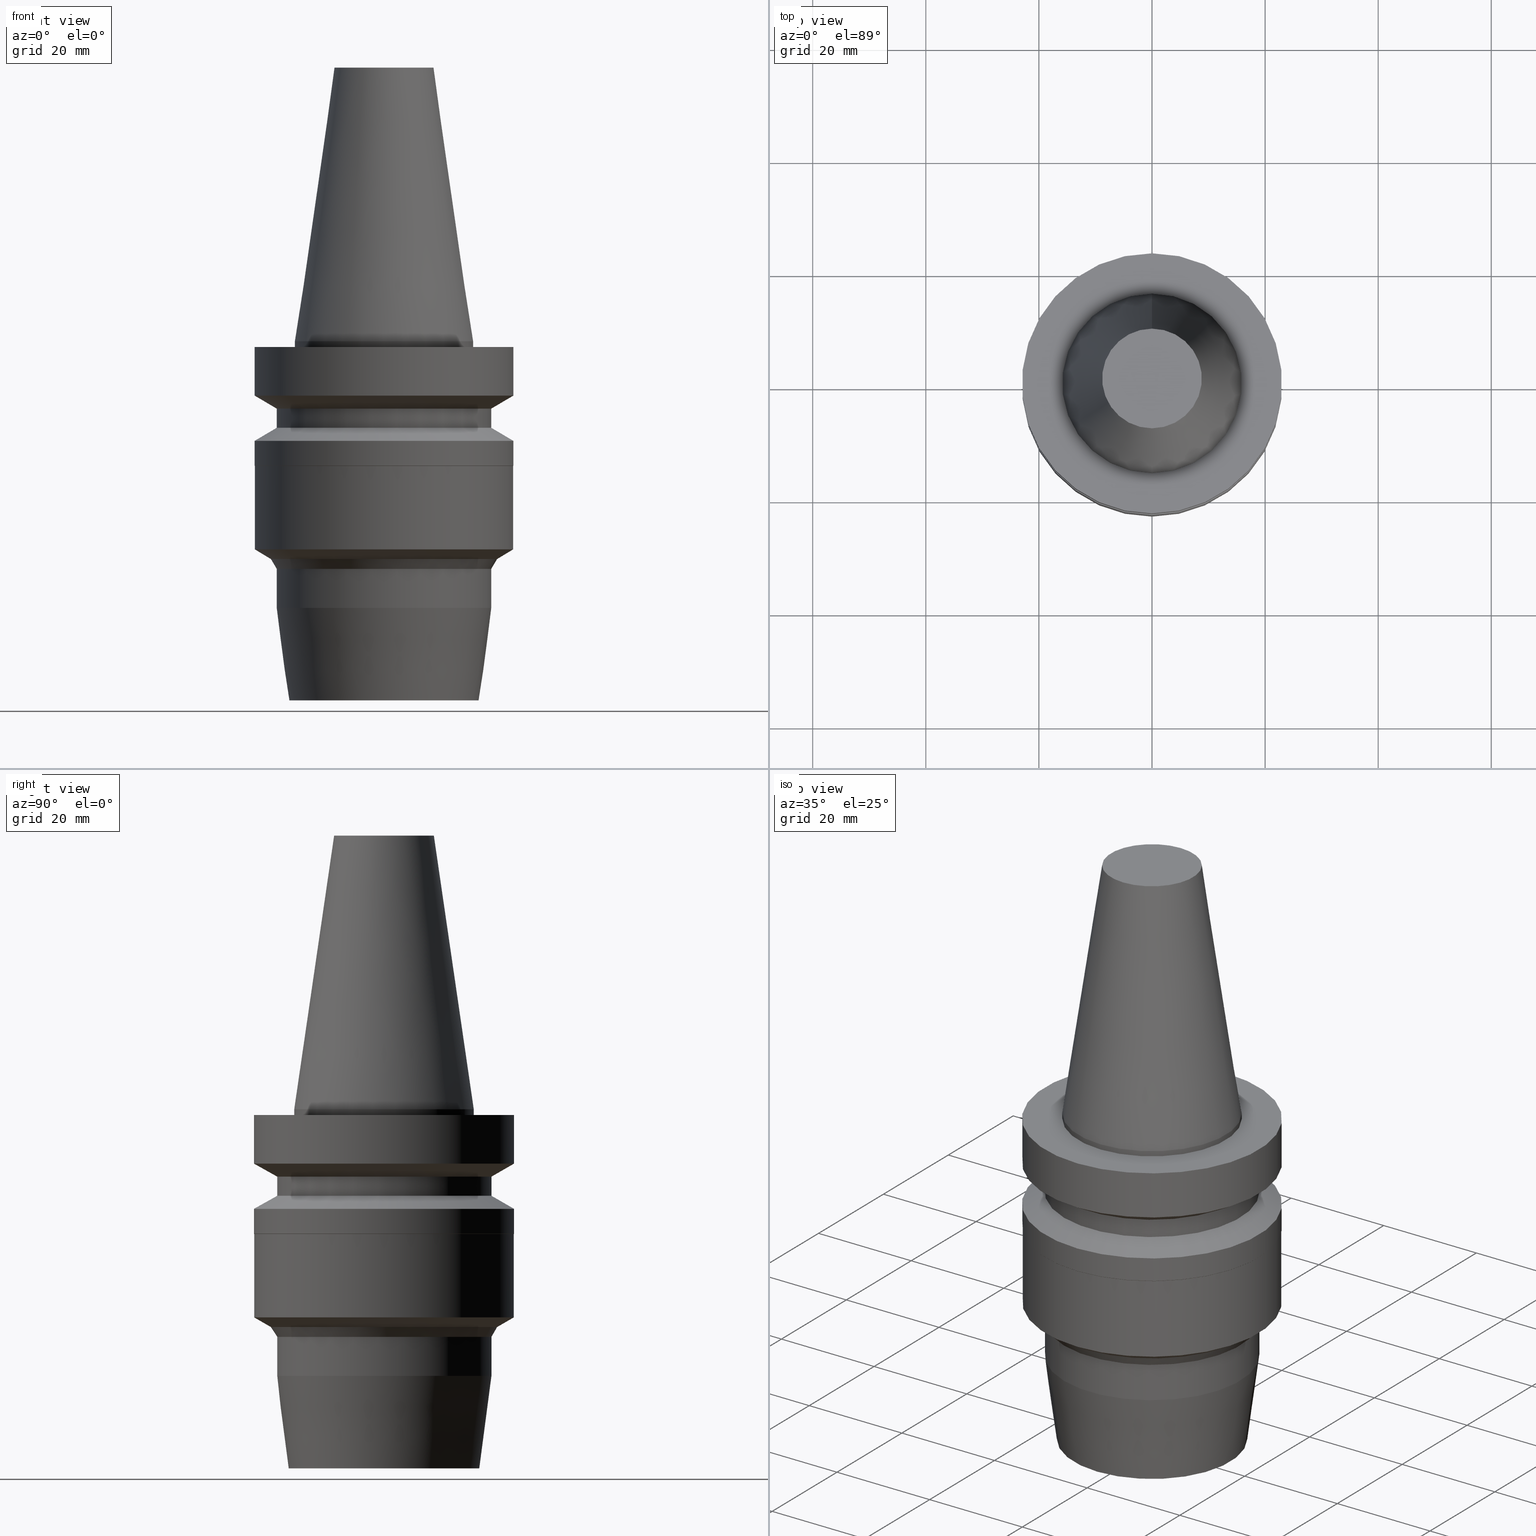
[diagram: canonical four-view strip — front | top / right | iso, engineering-drawing reading convention]
A machine part, canonical four-view strip (front | top / right | iso — engineering-drawing reading convention). The complete STEP part file that produces these views, byte-faithful:
ISO-10303-21;
HEADER;
FILE_DESCRIPTION((''),'1');
FILE_NAME('V:/90_\X2\53D65F9730C730FC30BF\X0\/00_\X2\6DE18DEF30C730FC30BF\X0\/ALL/BBT-BKUS\X2\FF76FF80FF9BFF78FF9E752852A05DE556F3\X0\201801/BBT30-HDC/BBT30-HDC.625-2.5.stp','2018-02-07T04:35:23',(''),(''),'Spatial Interop R21 SP3','Kubotek KeyCreator 2011 V10.0.2 (22737)',' ');
FILE_SCHEMA(('automotive_design'));
ENDSEC;
DATA;
#1=MECHANICAL_DESIGN_GEOMETRIC_PRESENTATION_REPRESENTATION(' ',(#10,#11,#12,#13,#14,#15,#16,#17,#18,#19,#20,#21,#22,#23,#24,#25,#26,#27,#28,#29,#30,#31,#32,#33,#34,#35,#36,#37,#38,#39,#40,#41),#6);
#2=PRODUCT_DEFINITION_CONTEXT('',#42,'design');
#3=APPLICATION_PROTOCOL_DEFINITION('INTERNATIONAL STANDARD','automotive_design',1994,#42);
#4=PRODUCT_CATEGORY_RELATIONSHIP('NONE','NONE',#43,#44);
#5=SHAPE_DEFINITION_REPRESENTATION(#45,#46);
#6= (GEOMETRIC_REPRESENTATION_CONTEXT(3)GLOBAL_UNCERTAINTY_ASSIGNED_CONTEXT((#49))GLOBAL_UNIT_ASSIGNED_CONTEXT((#51,#52,#53))REPRESENTATION_CONTEXT('NONE','WORKSPACE'));
#10=STYLED_ITEM('',(#55),#56);
#11=STYLED_ITEM('',(#57,#58),#59);
#12=STYLED_ITEM('',(#60,#61),#62);
#13=STYLED_ITEM('',(#63),#64);
#14=STYLED_ITEM('',(#65,#66),#67);
#15=STYLED_ITEM('',(#68),#69);
#16=STYLED_ITEM('',(#70),#71);
#17=STYLED_ITEM('',(#72,#73),#74);
#18=STYLED_ITEM('',(#75,#76),#77);
#19=STYLED_ITEM('',(#78,#79),#80);
#20=STYLED_ITEM('',(#81,#82),#83);
#21=STYLED_ITEM('',(#84,#85),#86);
#22=STYLED_ITEM('',(#87),#88);
#23=STYLED_ITEM('',(#89),#90);
#24=STYLED_ITEM('',(#91),#92);
#25=STYLED_ITEM('',(#93),#94);
#26=STYLED_ITEM('',(#95,#96),#97);
#27=STYLED_ITEM('',(#98,#99),#100);
#28=STYLED_ITEM('',(#101,#102),#103);
#29=STYLED_ITEM('',(#104),#105);
#30=STYLED_ITEM('',(#106),#107);
#31=STYLED_ITEM('',(#108),#109);
#32=STYLED_ITEM('',(#110),#111);
#33=STYLED_ITEM('',(#112,#113),#114);
#34=STYLED_ITEM('',(#115,#116),#117);
#35=STYLED_ITEM('',(#118,#119),#120);
#36=STYLED_ITEM('',(#121,#122),#123);
#37=STYLED_ITEM('',(#124),#125);
#38=STYLED_ITEM('',(#126),#127);
#39=STYLED_ITEM('',(#128),#129);
#40=STYLED_ITEM('',(#130,#131),#132);
#41=STYLED_ITEM('',(#133,#134),#135);
#42=APPLICATION_CONTEXT(' ');
#43=PRODUCT_CATEGORY('part','NONE');
#44=PRODUCT_RELATED_PRODUCT_CATEGORY('detail',' ',(#136));
#45=PRODUCT_DEFINITION_SHAPE('NONE','NONE',#137);
#46=ADVANCED_BREP_SHAPE_REPRESENTATION('Unnamed[1]',(#86,#138),#6);
#49=UNCERTAINTY_MEASURE_WITH_UNIT(LENGTH_MEASURE(1.0E-006),#51,'','');
#51= (CONVERSION_BASED_UNIT('MILLIMETRE',#141)LENGTH_UNIT()NAMED_UNIT(#144));
#52= (NAMED_UNIT(#146)PLANE_ANGLE_UNIT()SI_UNIT($,.RADIAN.));
#53= (NAMED_UNIT(#146)SOLID_ANGLE_UNIT()SI_UNIT($,.STERADIAN.));
#55=PRESENTATION_STYLE_ASSIGNMENT((#152));
#56=EDGE_CURVE('Unnamed[1]',#153,#153,#154,.T.);
#57=PRESENTATION_STYLE_ASSIGNMENT((#155));
#58=PRESENTATION_STYLE_ASSIGNMENT((#156));
#59=ADVANCED_FACE('Unnamed[1]',(#157,#158),#159,.T.);
#60=PRESENTATION_STYLE_ASSIGNMENT((#160));
#61=PRESENTATION_STYLE_ASSIGNMENT((#161));
#62=ADVANCED_FACE('Unnamed[1]',(#162,#163),#164,.T.);
#63=PRESENTATION_STYLE_ASSIGNMENT((#165));
#64=EDGE_CURVE('Unnamed[1]',#166,#166,#167,.T.);
#65=PRESENTATION_STYLE_ASSIGNMENT((#168));
#66=PRESENTATION_STYLE_ASSIGNMENT((#169));
#67=ADVANCED_FACE('Unnamed[1]',(#170,#171),#172,.T.);
#68=PRESENTATION_STYLE_ASSIGNMENT((#173));
#69=EDGE_CURVE('Unnamed[1]',#174,#174,#175,.T.);
#70=PRESENTATION_STYLE_ASSIGNMENT((#176));
#71=EDGE_CURVE('Unnamed[1]',#177,#177,#178,.T.);
#72=PRESENTATION_STYLE_ASSIGNMENT((#179));
#73=PRESENTATION_STYLE_ASSIGNMENT((#180));
#74=ADVANCED_FACE('Unnamed[1]',(#181,#182),#183,.T.);
#75=PRESENTATION_STYLE_ASSIGNMENT((#184));
#76=PRESENTATION_STYLE_ASSIGNMENT((#185));
#77=ADVANCED_FACE('Unnamed[1]',(#186,#187),#188,.T.);
#78=PRESENTATION_STYLE_ASSIGNMENT((#189));
#79=PRESENTATION_STYLE_ASSIGNMENT((#190));
#80=ADVANCED_FACE('Unnamed[1]',(#191,#192),#193,.T.);
#81=PRESENTATION_STYLE_ASSIGNMENT((#194));
#82=PRESENTATION_STYLE_ASSIGNMENT((#195));
#83=ADVANCED_FACE('Unnamed[1]',(#196,#197),#198,.T.);
#84=PRESENTATION_STYLE_ASSIGNMENT((#199));
#85=PRESENTATION_STYLE_ASSIGNMENT((#200));
#86=MANIFOLD_SOLID_BREP('Unnamed[1]',#201);
#87=PRESENTATION_STYLE_ASSIGNMENT((#202));
#88=EDGE_CURVE('Unnamed[1]',#203,#203,#204,.T.);
#89=PRESENTATION_STYLE_ASSIGNMENT((#205));
#90=EDGE_CURVE('Unnamed[1]',#206,#206,#207,.T.);
#91=PRESENTATION_STYLE_ASSIGNMENT((#208));
#92=EDGE_CURVE('Unnamed[1]',#209,#209,#210,.T.);
#93=PRESENTATION_STYLE_ASSIGNMENT((#211));
#94=EDGE_CURVE('Unnamed[1]',#212,#212,#213,.T.);
#95=PRESENTATION_STYLE_ASSIGNMENT((#214));
#96=PRESENTATION_STYLE_ASSIGNMENT((#215));
#97=ADVANCED_FACE('Unnamed[1]',(#216,#217),#218,.T.);
#98=PRESENTATION_STYLE_ASSIGNMENT((#219));
#99=PRESENTATION_STYLE_ASSIGNMENT((#220));
#100=ADVANCED_FACE('Unnamed[1]',(#221,#222),#223,.T.);
#101=PRESENTATION_STYLE_ASSIGNMENT((#224));
#102=PRESENTATION_STYLE_ASSIGNMENT((#225));
#103=ADVANCED_FACE('Unnamed[1]',(#226,#227),#228,.T.);
#104=PRESENTATION_STYLE_ASSIGNMENT((#229));
#105=EDGE_CURVE('Unnamed[1]',#230,#230,#231,.T.);
#106=PRESENTATION_STYLE_ASSIGNMENT((#232));
#107=EDGE_CURVE('Unnamed[1]',#233,#233,#234,.T.);
#108=PRESENTATION_STYLE_ASSIGNMENT((#235));
#109=EDGE_CURVE('Unnamed[1]',#236,#236,#237,.T.);
#110=PRESENTATION_STYLE_ASSIGNMENT((#238));
#111=EDGE_CURVE('Unnamed[1]',#239,#239,#240,.T.);
#112=PRESENTATION_STYLE_ASSIGNMENT((#241));
#113=PRESENTATION_STYLE_ASSIGNMENT((#242));
#114=ADVANCED_FACE('Unnamed[1]',(#243,#244),#245,.T.);
#115=PRESENTATION_STYLE_ASSIGNMENT((#246));
#116=PRESENTATION_STYLE_ASSIGNMENT((#247));
#117=ADVANCED_FACE('Unnamed[1]',(#248),#249,.T.);
#118=PRESENTATION_STYLE_ASSIGNMENT((#250));
#119=PRESENTATION_STYLE_ASSIGNMENT((#251));
#120=ADVANCED_FACE('Unnamed[1]',(#252,#253),#254,.T.);
#121=PRESENTATION_STYLE_ASSIGNMENT((#255));
#122=PRESENTATION_STYLE_ASSIGNMENT((#256));
#123=ADVANCED_FACE('Unnamed[1]',(#257),#258,.T.);
#124=PRESENTATION_STYLE_ASSIGNMENT((#259));
#125=EDGE_CURVE('Unnamed[1]',#260,#260,#261,.T.);
#126=PRESENTATION_STYLE_ASSIGNMENT((#262));
#127=EDGE_CURVE('Unnamed[1]',#263,#263,#264,.T.);
#128=PRESENTATION_STYLE_ASSIGNMENT((#265));
#129=EDGE_CURVE('Unnamed[1]',#266,#266,#267,.T.);
#130=PRESENTATION_STYLE_ASSIGNMENT((#268));
#131=PRESENTATION_STYLE_ASSIGNMENT((#269));
#132=ADVANCED_FACE('Unnamed[1]',(#270,#271),#272,.T.);
#133=PRESENTATION_STYLE_ASSIGNMENT((#273));
#134=PRESENTATION_STYLE_ASSIGNMENT((#274));
#135=ADVANCED_FACE('Unnamed[1]',(#275,#276),#277,.T.);
#136=PRODUCT('Unnamed[1]','Unnamed[1]','PART-Unnamed[1]-DESC',(#278));
#137=PRODUCT_DEFINITION('NONE','NONE',#279,#2);
#138=AXIS2_PLACEMENT_3D('',#280,#281,#282);
#141=LENGTH_MEASURE_WITH_UNIT(LENGTH_MEASURE(1.0),#283);
#144=DIMENSIONAL_EXPONENTS(1.0,0.0,0.0,0.0,0.0,0.0,0.0);
#146=DIMENSIONAL_EXPONENTS(0.0,0.0,0.0,0.0,0.0,0.0,0.0);
#152=CURVE_STYLE('',#284,POSITIVE_LENGTH_MEASURE(1000.0),#285);
#153=VERTEX_POINT('',#286);
#154=CIRCLE('',#287,8.81650000198669);
#155=SURFACE_STYLE_USAGE(.BOTH.,#288);
#156=CURVE_STYLE('',#289,POSITIVE_LENGTH_MEASURE(1000.0),#290);
#157=FACE_BOUND('',#291,.T.);
#158=FACE_BOUND('',#292,.T.);
#159=CYLINDRICAL_SURFACE('',#293,19.0);
#160=SURFACE_STYLE_USAGE(.BOTH.,#294);
#161=CURVE_STYLE('',#295,POSITIVE_LENGTH_MEASURE(1000.0),#296);
#162=FACE_BOUND('',#297,.T.);
#163=FACE_BOUND('',#298,.T.);
#164=CYLINDRICAL_SURFACE('',#299,22.9500000000001);
#165=CURVE_STYLE('',#300,POSITIVE_LENGTH_MEASURE(1000.0),#301);
#166=VERTEX_POINT('',#302);
#167=CIRCLE('',#303,19.0);
#168=SURFACE_STYLE_USAGE(.BOTH.,#304);
#169=CURVE_STYLE('',#305,POSITIVE_LENGTH_MEASURE(1000.0),#306);
#170=FACE_BOUND('',#307,.T.);
#171=FACE_BOUND('',#308,.T.);
#172=CYLINDRICAL_SURFACE('',#309,23.0);
#173=CURVE_STYLE('',#310,POSITIVE_LENGTH_MEASURE(1000.0),#311);
#174=VERTEX_POINT('',#312);
#175=CIRCLE('',#313,22.9500000000004);
#176=CURVE_STYLE('',#314,POSITIVE_LENGTH_MEASURE(1000.0),#315);
#177=VERTEX_POINT('',#316);
#178=CIRCLE('',#317,19.0000000000028);
#179=SURFACE_STYLE_USAGE(.BOTH.,#318);
#180=CURVE_STYLE('',#319,POSITIVE_LENGTH_MEASURE(1000.0),#320);
#181=FACE_BOUND('',#321,.T.);
#182=FACE_BOUND('',#322,.T.);
#183=CYLINDRICAL_SURFACE('',#323,15.875);
#184=SURFACE_STYLE_USAGE(.BOTH.,#324);
#185=CURVE_STYLE('',#325,POSITIVE_LENGTH_MEASURE(1000.0),#326);
#186=FACE_OUTER_BOUND('',#327,.T.);
#187=FACE_BOUND('',#328,.T.);
#188=PLANE('',#329);
#189=SURFACE_STYLE_USAGE(.BOTH.,#330);
#190=CURVE_STYLE('',#331,POSITIVE_LENGTH_MEASURE(1000.0),#332);
#191=FACE_BOUND('',#333,.T.);
#192=FACE_BOUND('',#334,.T.);
#193=CONICAL_SURFACE('',#335,22.9749999999999,0.7853981633972);
#194=SURFACE_STYLE_USAGE(.BOTH.,#336);
#195=CURVE_STYLE('',#337,POSITIVE_LENGTH_MEASURE(1000.0),#338);
#196=FACE_BOUND('',#339,.T.);
#197=FACE_BOUND('',#340,.T.);
#198=CYLINDRICAL_SURFACE('',#341,23.0);
#199=SURFACE_STYLE_USAGE(.BOTH.,#342);
#200=CURVE_STYLE('',#343,POSITIVE_LENGTH_MEASURE(1000.0),#344);
#201=CLOSED_SHELL('',(#123,#103,#74,#77,#83,#114,#59,#132,#67,#80,#62,#97,#135,#100,#120,#117));
#202=CURVE_STYLE('',#345,POSITIVE_LENGTH_MEASURE(1000.0),#346);
#203=VERTEX_POINT('',#347);
#204=CIRCLE('',#348,23.0);
#205=CURVE_STYLE('',#349,POSITIVE_LENGTH_MEASURE(1000.0),#350);
#206=VERTEX_POINT('',#351);
#207=CIRCLE('',#352,19.0000000000043);
#208=CURVE_STYLE('',#353,POSITIVE_LENGTH_MEASURE(1000.0),#354);
#209=VERTEX_POINT('',#355);
#210=CIRCLE('',#356,15.875);
#211=CURVE_STYLE('',#357,POSITIVE_LENGTH_MEASURE(1000.0),#358);
#212=VERTEX_POINT('',#359);
#213=CIRCLE('',#360,16.8455306051991);
#214=SURFACE_STYLE_USAGE(.BOTH.,#361);
#215=CURVE_STYLE('',#362,POSITIVE_LENGTH_MEASURE(1000.0),#363);
#216=FACE_BOUND('',#364,.T.);
#217=FACE_BOUND('',#365,.T.);
#218=CONICAL_SURFACE('',#366,21.4749999999991,1.04719755119646);
#219=SURFACE_STYLE_USAGE(.BOTH.,#367);
#220=CURVE_STYLE('',#368,POSITIVE_LENGTH_MEASURE(1000.0),#369);
#221=FACE_BOUND('',#370,.T.);
#222=FACE_BOUND('',#371,.T.);
#223=CYLINDRICAL_SURFACE('',#372,19.0000000000035);
#224=SURFACE_STYLE_USAGE(.BOTH.,#373);
#225=CURVE_STYLE('',#374,POSITIVE_LENGTH_MEASURE(1000.0),#375);
#226=FACE_BOUND('',#376,.T.);
#227=FACE_BOUND('',#377,.T.);
#228=CONICAL_SURFACE('',#378,12.3457500009933,0.144815870013618);
#229=CURVE_STYLE('',#379,POSITIVE_LENGTH_MEASURE(1000.0),#380);
#230=VERTEX_POINT('',#381);
#231=CIRCLE('',#382,23.0);
#232=CURVE_STYLE('',#383,POSITIVE_LENGTH_MEASURE(1000.0),#384);
#233=VERTEX_POINT('',#385);
#234=CIRCLE('',#386,23.0);
#235=CURVE_STYLE('',#387,POSITIVE_LENGTH_MEASURE(1000.0),#388);
#236=VERTEX_POINT('',#389);
#237=CIRCLE('',#390,23.0);
#238=CURVE_STYLE('',#391,POSITIVE_LENGTH_MEASURE(1000.0),#392);
#239=VERTEX_POINT('',#393);
#240=CIRCLE('',#394,22.9499999999999);
#241=SURFACE_STYLE_USAGE(.BOTH.,#395);
#242=CURVE_STYLE('',#396,POSITIVE_LENGTH_MEASURE(1000.0),#397);
#243=FACE_BOUND('',#398,.T.);
#244=FACE_BOUND('',#399,.T.);
#245=CONICAL_SURFACE('',#400,21.0,1.04719755058881);
#246=SURFACE_STYLE_USAGE(.BOTH.,#401);
#247=CURVE_STYLE('',#402,POSITIVE_LENGTH_MEASURE(1000.0),#403);
#248=FACE_OUTER_BOUND('',#404,.T.);
#249=PLANE('',#405);
#250=SURFACE_STYLE_USAGE(.BOTH.,#406);
#251=CURVE_STYLE('',#407,POSITIVE_LENGTH_MEASURE(1000.0),#408);
#252=FACE_BOUND('',#409,.T.);
#253=FACE_BOUND('',#410,.T.);
#254=CONICAL_SURFACE('',#411,17.9227653026017,0.130899693899579);
#255=SURFACE_STYLE_USAGE(.BOTH.,#412);
#256=CURVE_STYLE('',#413,POSITIVE_LENGTH_MEASURE(1000.0),#414);
#257=FACE_OUTER_BOUND('',#415,.T.);
#258=PLANE('',#416);
#259=CURVE_STYLE('',#417,POSITIVE_LENGTH_MEASURE(1000.0),#418);
#260=VERTEX_POINT('',#419);
#261=CIRCLE('',#420,19.0);
#262=CURVE_STYLE('',#421,POSITIVE_LENGTH_MEASURE(1000.0),#422);
#263=VERTEX_POINT('',#423);
#264=CIRCLE('',#424,15.875);
#265=CURVE_STYLE('',#425,POSITIVE_LENGTH_MEASURE(1000.0),#426);
#266=VERTEX_POINT('',#427);
#267=CIRCLE('',#428,19.9999999999977);
#268=SURFACE_STYLE_USAGE(.BOTH.,#429);
#269=CURVE_STYLE('',#430,POSITIVE_LENGTH_MEASURE(1000.0),#431);
#270=FACE_BOUND('',#432,.T.);
#271=FACE_BOUND('',#433,.T.);
#272=CONICAL_SURFACE('',#434,21.0,1.04719755058882);
#273=SURFACE_STYLE_USAGE(.BOTH.,#435);
#274=CURVE_STYLE('',#436,POSITIVE_LENGTH_MEASURE(1000.0),#437);
#275=FACE_BOUND('',#438,.T.);
#276=FACE_BOUND('',#439,.T.);
#277=CONICAL_SURFACE('',#440,19.5000000000002,0.523598775598225);
#278=PRODUCT_CONTEXT('',#42,'mechanical');
#279=PRODUCT_DEFINITION_FORMATION_WITH_SPECIFIED_SOURCE(' ','NONE',#136,.NOT_KNOWN.);
#280=CARTESIAN_POINT('',(0.0,0.0,0.0));
#281=DIRECTION('',(0.0,0.0,1.0));
#282=DIRECTION('',(1.0,0.0,0.0));
#283= (NAMED_UNIT(#144)LENGTH_UNIT()SI_UNIT(.MILLI.,.METRE.));
#284=DRAUGHTING_PRE_DEFINED_CURVE_FONT('continuous');
#285=COLOUR_RGB('',0.0,1.0,0.0);
#286=CARTESIAN_POINT('',(-2.96364525393659E-015,8.81650000198669,48.4));
#287=AXIS2_PLACEMENT_3D('',#442,#443,#444);
#288=SURFACE_SIDE_STYLE('',(#445));
#289=DRAUGHTING_PRE_DEFINED_CURVE_FONT('continuous');
#290=COLOUR_RGB('',0.0,1.0,0.0);
#291=EDGE_LOOP('',(#446));
#292=EDGE_LOOP('',(#447));
#293=AXIS2_PLACEMENT_3D('',#448,#449,#450);
#294=SURFACE_SIDE_STYLE('',(#451));
#295=DRAUGHTING_PRE_DEFINED_CURVE_FONT('continuous');
#296=COLOUR_RGB('',0.0,1.0,0.0);
#297=EDGE_LOOP('',(#452));
#298=EDGE_LOOP('',(#453));
#299=AXIS2_PLACEMENT_3D('',#454,#455,#456);
#300=DRAUGHTING_PRE_DEFINED_CURVE_FONT('continuous');
#301=COLOUR_RGB('',0.0,1.0,0.0);
#302=CARTESIAN_POINT('',(9.36279151221199E-016,19.0,-15.29059892));
#303=AXIS2_PLACEMENT_3D('',#457,#458,#459);
#304=SURFACE_SIDE_STYLE('',(#460));
#305=DRAUGHTING_PRE_DEFINED_CURVE_FONT('continuous');
#306=COLOUR_RGB('',0.0,1.0,0.0);
#307=EDGE_LOOP('',(#461));
#308=EDGE_LOOP('',(#462));
#309=AXIS2_PLACEMENT_3D('',#463,#464,#465);
#310=DRAUGHTING_PRE_DEFINED_CURVE_FONT('continuous');
#311=COLOUR_RGB('',0.0,1.0,0.0);
#312=CARTESIAN_POINT('',(2.25335011043082E-015,22.9500000000004,-36.799999999995));
#313=AXIS2_PLACEMENT_3D('',#466,#467,#468);
#314=DRAUGHTING_PRE_DEFINED_CURVE_FONT('continuous');
#315=COLOUR_RGB('',0.0,1.0,0.0);
#316=CARTESIAN_POINT('',(2.46369753277754E-015,19.0000000000028,-40.2352341016669));
#317=AXIS2_PLACEMENT_3D('',#469,#470,#471);
#318=SURFACE_SIDE_STYLE('',(#472));
#319=DRAUGHTING_PRE_DEFINED_CURVE_FONT('continuous');
#320=COLOUR_RGB('',0.0,1.0,0.0);
#321=EDGE_LOOP('',(#473));
#322=EDGE_LOOP('',(#474));
#323=AXIS2_PLACEMENT_3D('',#475,#476,#477);
#324=SURFACE_SIDE_STYLE('',(#478));
#325=DRAUGHTING_PRE_DEFINED_CURVE_FONT('continuous');
#326=COLOUR_RGB('',0.0,1.0,0.0);
#327=EDGE_LOOP('',(#479));
#328=EDGE_LOOP('',(#480));
#329=AXIS2_PLACEMENT_3D('',#481,#482,#483);
#330=SURFACE_SIDE_STYLE('',(#484));
#331=DRAUGHTING_PRE_DEFINED_CURVE_FONT('continuous');
#332=COLOUR_RGB('',0.0,1.0,0.0);
#333=EDGE_LOOP('',(#485));
#334=EDGE_LOOP('',(#486));
#335=AXIS2_PLACEMENT_3D('',#487,#488,#489);
#336=SURFACE_SIDE_STYLE('',(#490));
#337=DRAUGHTING_PRE_DEFINED_CURVE_FONT('continuous');
#338=COLOUR_RGB('',0.0,1.0,0.0);
#339=EDGE_LOOP('',(#491));
#340=EDGE_LOOP('',(#492));
#341=AXIS2_PLACEMENT_3D('',#493,#494,#495);
#342=SURFACE_SIDE_STYLE('',(#496));
#343=DRAUGHTING_PRE_DEFINED_CURVE_FONT('continuous');
#344=COLOUR_RGB('',0.0,1.0,0.0);
#345=DRAUGHTING_PRE_DEFINED_CURVE_FONT('continuous');
#346=COLOUR_RGB('',0.0,1.0,0.0);
#347=CARTESIAN_POINT('',(5.87830463590729E-016,23.0,-9.59999999999999));
#348=AXIS2_PLACEMENT_3D('',#497,#498,#499);
#349=DRAUGHTING_PRE_DEFINED_CURVE_FONT('continuous');
#350=COLOUR_RGB('',0.0,1.0,0.0);
#351=CARTESIAN_POINT('',(2.88619738001959E-015,19.0000000000043,-47.1351802336653));
#352=AXIS2_PLACEMENT_3D('',#500,#501,#502);
#353=DRAUGHTING_PRE_DEFINED_CURVE_FONT('continuous');
#354=COLOUR_RGB('',0.0,1.0,0.0);
#355=CARTESIAN_POINT('',(-1.95674482349743E-031,15.875,1.94412679364642E-015));
#356=AXIS2_PLACEMENT_3D('',#503,#504,#505);
#357=DRAUGHTING_PRE_DEFINED_CURVE_FONT('continuous');
#358=COLOUR_RGB('',0.0,1.0,0.0);
#359=CARTESIAN_POINT('',(3.88825358729263E-015,16.8455306051991,-63.4999999999964));
#360=AXIS2_PLACEMENT_3D('',#506,#507,#508);
#361=SURFACE_SIDE_STYLE('',(#509));
#362=DRAUGHTING_PRE_DEFINED_CURVE_FONT('continuous');
#363=COLOUR_RGB('',0.0,1.0,0.0);
#364=EDGE_LOOP('',(#510));
#365=EDGE_LOOP('',(#511));
#366=AXIS2_PLACEMENT_3D('',#512,#513,#514);
#367=SURFACE_SIDE_STYLE('',(#515));
#368=DRAUGHTING_PRE_DEFINED_CURVE_FONT('continuous');
#369=COLOUR_RGB('',0.0,1.0,0.0);
#370=EDGE_LOOP('',(#516));
#371=EDGE_LOOP('',(#517));
#372=AXIS2_PLACEMENT_3D('',#518,#519,#520);
#373=SURFACE_SIDE_STYLE('',(#521));
#374=DRAUGHTING_PRE_DEFINED_CURVE_FONT('continuous');
#375=COLOUR_RGB('',0.0,1.0,0.0);
#376=EDGE_LOOP('',(#522));
#377=EDGE_LOOP('',(#523));
#378=AXIS2_PLACEMENT_3D('',#524,#525,#526);
#379=DRAUGHTING_PRE_DEFINED_CURVE_FONT('continuous');
#380=COLOUR_RGB('',0.0,1.0,0.0);
#381=CARTESIAN_POINT('',(6.12323399573674E-017,23.0,-0.999999999999997));
#382=AXIS2_PLACEMENT_3D('',#527,#528,#529);
#383=DRAUGHTING_PRE_DEFINED_CURVE_FONT('continuous');
#384=COLOUR_RGB('',0.0,1.0,0.0);
#385=CARTESIAN_POINT('',(1.07768918324967E-015,23.0,-17.6));
#386=AXIS2_PLACEMENT_3D('',#530,#531,#532);
#387=DRAUGHTING_PRE_DEFINED_CURVE_FONT('continuous');
#388=COLOUR_RGB('',0.0,1.0,0.0);
#389=CARTESIAN_POINT('',(1.34711147906216E-015,23.0,-22.0000000000012));
#390=AXIS2_PLACEMENT_3D('',#533,#534,#535);
#391=DRAUGHTING_PRE_DEFINED_CURVE_FONT('continuous');
#392=COLOUR_RGB('',0.0,1.0,0.0);
#393=CARTESIAN_POINT('',(1.35017309606004E-015,22.9499999999999,-22.0500000000013));
#394=AXIS2_PLACEMENT_3D('',#536,#537,#538);
#395=SURFACE_SIDE_STYLE('',(#539));
#396=DRAUGHTING_PRE_DEFINED_CURVE_FONT('continuous');
#397=COLOUR_RGB('',0.0,1.0,0.0);
#398=EDGE_LOOP('',(#540));
#399=EDGE_LOOP('',(#541));
#400=AXIS2_PLACEMENT_3D('',#542,#543,#544);
#401=SURFACE_SIDE_STYLE('',(#545));
#402=DRAUGHTING_PRE_DEFINED_CURVE_FONT('continuous');
#403=COLOUR_RGB('',0.0,1.0,0.0);
#404=EDGE_LOOP('',(#546));
#405=AXIS2_PLACEMENT_3D('',#547,#548,#549);
#406=SURFACE_SIDE_STYLE('',(#550));
#407=DRAUGHTING_PRE_DEFINED_CURVE_FONT('continuous');
#408=COLOUR_RGB('',0.0,1.0,0.0);
#409=EDGE_LOOP('',(#551));
#410=EDGE_LOOP('',(#552));
#411=AXIS2_PLACEMENT_3D('',#553,#554,#555);
#412=SURFACE_SIDE_STYLE('',(#556));
#413=DRAUGHTING_PRE_DEFINED_CURVE_FONT('continuous');
#414=COLOUR_RGB('',0.0,1.0,0.0);
#415=EDGE_LOOP('',(#557));
#416=AXIS2_PLACEMENT_3D('',#558,#559,#560);
#417=DRAUGHTING_PRE_DEFINED_CURVE_FONT('continuous');
#418=COLOUR_RGB('',0.0,1.0,0.0);
#419=CARTESIAN_POINT('',(7.29240495619202E-016,19.0,-11.90940108));
#420=AXIS2_PLACEMENT_3D('',#561,#562,#563);
#421=DRAUGHTING_PRE_DEFINED_CURVE_FONT('continuous');
#422=COLOUR_RGB('',0.0,1.0,0.0);
#423=CARTESIAN_POINT('',(6.12323399573675E-017,15.875,-0.999999999999998));
#424=AXIS2_PLACEMENT_3D('',#564,#565,#566);
#425=DRAUGHTING_PRE_DEFINED_CURVE_FONT('continuous');
#426=COLOUR_RGB('',0.0,1.0,0.0);
#427=CARTESIAN_POINT('',(2.35764000890557E-015,19.9999999999977,-38.5031832941065));
#428=AXIS2_PLACEMENT_3D('',#567,#568,#569);
#429=SURFACE_SIDE_STYLE('',(#570));
#430=DRAUGHTING_PRE_DEFINED_CURVE_FONT('continuous');
#431=COLOUR_RGB('',0.0,1.0,0.0);
#432=EDGE_LOOP('',(#571));
#433=EDGE_LOOP('',(#572));
#434=AXIS2_PLACEMENT_3D('',#573,#574,#575);
#435=SURFACE_SIDE_STYLE('',(#576));
#436=DRAUGHTING_PRE_DEFINED_CURVE_FONT('continuous');
#437=COLOUR_RGB('',0.0,1.0,0.0);
#438=EDGE_LOOP('',(#577));
#439=EDGE_LOOP('',(#578));
#440=AXIS2_PLACEMENT_3D('',#579,#580,#581);
#442=CARTESIAN_POINT('',(-2.96364525393659E-015,-5.92729050787319E-015,48.4));
#443=DIRECTION('',(6.12323399573677E-017,1.22464679914735E-016,-1.0));
#444=DIRECTION('',(-1.23259516440783E-032,1.0,1.22464679914735E-016));
#445=SURFACE_STYLE_FILL_AREA(#582);
#446=ORIENTED_EDGE('',*,*,#64,.F.);
#447=ORIENTED_EDGE('',*,*,#125,.T.);
#448=CARTESIAN_POINT('',(8.32759823420201E-016,1.6655196468404E-015,-13.6));
#449=DIRECTION('',(6.12323399573677E-017,1.22464679914735E-016,-1.0));
#450=DIRECTION('',(-1.23259516440783E-032,1.0,1.22464679914735E-016));
#451=SURFACE_STYLE_FILL_AREA(#583);
#452=ORIENTED_EDGE('',*,*,#69,.F.);
#453=ORIENTED_EDGE('',*,*,#111,.T.);
#454=CARTESIAN_POINT('',(1.80176160324543E-015,3.60352320649086E-015,-29.4249999999982));
#455=DIRECTION('',(6.12323399573677E-017,1.22464679914735E-016,-1.0));
#456=DIRECTION('',(-1.23259516440783E-032,1.0,1.22464679914735E-016));
#457=CARTESIAN_POINT('',(9.36279151221199E-016,1.8725583024424E-015,-15.29059892));
#458=DIRECTION('',(6.12323399573677E-017,1.22464679914735E-016,-1.0));
#459=DIRECTION('',(-1.23259516440783E-032,1.0,1.22464679914735E-016));
#460=SURFACE_STYLE_FILL_AREA(#584);
#461=ORIENTED_EDGE('',*,*,#109,.F.);
#462=ORIENTED_EDGE('',*,*,#107,.T.);
#463=CARTESIAN_POINT('',(1.21240033115592E-015,2.42480066231183E-015,-19.8000000000006));
#464=DIRECTION('',(6.12323399573677E-017,1.22464679914735E-016,-1.0));
#465=DIRECTION('',(-1.23259516440783E-032,1.0,1.22464679914735E-016));
#466=CARTESIAN_POINT('',(2.25335011043082E-015,4.50670022086164E-015,-36.799999999995));
#467=DIRECTION('',(6.12323399573677E-017,1.22464679914735E-016,-1.0));
#468=DIRECTION('',(-1.23259516440783E-032,1.0,1.22464679914735E-016));
#469=CARTESIAN_POINT('',(2.46369753277754E-015,4.92739506555508E-015,-40.2352341016669));
#470=DIRECTION('',(6.12323399573677E-017,1.22464679914735E-016,-1.0));
#471=DIRECTION('',(-1.23259516440783E-032,1.0,1.22464679914735E-016));
#472=SURFACE_STYLE_FILL_AREA(#585);
#473=ORIENTED_EDGE('',*,*,#127,.F.);
#474=ORIENTED_EDGE('',*,*,#92,.T.);
#475=CARTESIAN_POINT('',(3.06161699786838E-017,6.12323399573676E-017,-0.5));
#476=DIRECTION('',(6.12323399573677E-017,1.22464679914735E-016,-1.0));
#477=DIRECTION('',(-1.23259516440783E-032,1.0,1.22464679914735E-016));
#478=SURFACE_STYLE_FILL_AREA(#586);
#479=ORIENTED_EDGE('',*,*,#105,.F.);
#480=ORIENTED_EDGE('',*,*,#127,.T.);
#481=CARTESIAN_POINT('',(6.12323399573674E-017,19.4375,-0.999999999999998));
#482=DIRECTION('',(-6.12323399573677E-017,-1.22464679914735E-016,1.0));
#483=DIRECTION('',(1.23259516440783E-032,-1.0,-1.22464679914735E-016));
#484=SURFACE_STYLE_FILL_AREA(#587);
#485=ORIENTED_EDGE('',*,*,#111,.F.);
#486=ORIENTED_EDGE('',*,*,#109,.T.);
#487=CARTESIAN_POINT('',(1.3486422875611E-015,2.6972845751222E-015,-22.0250000000013));
#488=DIRECTION('',(-6.12323399573677E-017,-1.22464679914735E-016,1.0));
#489=DIRECTION('',(-1.23259516440783E-032,1.0,1.22464679914735E-016));
#490=SURFACE_STYLE_FILL_AREA(#588);
#491=ORIENTED_EDGE('',*,*,#88,.F.);
#492=ORIENTED_EDGE('',*,*,#105,.T.);
#493=CARTESIAN_POINT('',(3.24531401774048E-016,6.49062803548097E-016,-5.3));
#494=DIRECTION('',(6.12323399573677E-017,1.22464679914735E-016,-1.0));
#495=DIRECTION('',(-1.23259516440783E-032,1.0,1.22464679914735E-016));
#496=SURFACE_STYLE_FILL_AREA(#589);
#497=CARTESIAN_POINT('',(5.87830463590729E-016,1.17566092718146E-015,-9.59999999999999));
#498=DIRECTION('',(6.12323399573677E-017,1.22464679914735E-016,-1.0));
#499=DIRECTION('',(-1.23259516440783E-032,1.0,1.22464679914735E-016));
#500=CARTESIAN_POINT('',(2.88619738001959E-015,5.77239476003917E-015,-47.1351802336653));
#501=DIRECTION('',(6.12323399573677E-017,1.22464679914735E-016,-1.0));
#502=DIRECTION('',(-1.23259516440783E-032,1.0,1.22464679914735E-016));
#503=CARTESIAN_POINT('',(0.0,0.0,0.0));
#504=DIRECTION('',(6.12323399573677E-017,1.22464679914735E-016,-1.0));
#505=DIRECTION('',(-1.23259516440783E-032,1.0,1.22464679914735E-016));
#506=CARTESIAN_POINT('',(3.88825358729263E-015,7.77650717458525E-015,-63.4999999999964));
#507=DIRECTION('',(6.12323399573677E-017,1.22464679914735E-016,-1.0));
#508=DIRECTION('',(-1.23259516440783E-032,1.0,1.22464679914735E-016));
#509=SURFACE_STYLE_FILL_AREA(#590);
#510=ORIENTED_EDGE('',*,*,#129,.F.);
#511=ORIENTED_EDGE('',*,*,#69,.T.);
#512=CARTESIAN_POINT('',(2.3054950596682E-015,4.61099011933639E-015,-37.6515916470507));
#513=DIRECTION('',(-6.12323399573677E-017,-1.22464679914735E-016,1.0));
#514=DIRECTION('',(-1.23259516440783E-032,1.0,1.22464679914735E-016));
#515=SURFACE_STYLE_FILL_AREA(#591);
#516=ORIENTED_EDGE('',*,*,#90,.F.);
#517=ORIENTED_EDGE('',*,*,#71,.T.);
#518=CARTESIAN_POINT('',(2.67494745639856E-015,5.34989491279713E-015,-43.6852071676661));
#519=DIRECTION('',(6.12323399573677E-017,1.22464679914735E-016,-1.0));
#520=DIRECTION('',(-1.23259516440783E-032,1.0,1.22464679914735E-016));
#521=SURFACE_STYLE_FILL_AREA(#592);
#522=ORIENTED_EDGE('',*,*,#92,.F.);
#523=ORIENTED_EDGE('',*,*,#56,.T.);
#524=CARTESIAN_POINT('',(-1.4818226269683E-015,-2.96364525393659E-015,24.2));
#525=DIRECTION('',(6.12323399573677E-017,1.22464679914735E-016,-1.0));
#526=DIRECTION('',(-1.23259516440783E-032,1.0,1.22464679914735E-016));
#527=CARTESIAN_POINT('',(6.12323399573677E-017,1.22464679914735E-016,-1.0));
#528=DIRECTION('',(6.12323399573677E-017,1.22464679914735E-016,-1.0));
#529=DIRECTION('',(-1.23259516440783E-032,1.0,1.22464679914735E-016));
#530=CARTESIAN_POINT('',(1.07768918324967E-015,2.15537836649934E-015,-17.6));
#531=DIRECTION('',(6.12323399573677E-017,1.22464679914735E-016,-1.0));
#532=DIRECTION('',(-1.23259516440783E-032,1.0,1.22464679914735E-016));
#533=CARTESIAN_POINT('',(1.34711147906216E-015,2.69422295812432E-015,-22.0000000000012));
#534=DIRECTION('',(6.12323399573677E-017,1.22464679914735E-016,-1.0));
#535=DIRECTION('',(-1.23259516440783E-032,1.0,1.22464679914735E-016));
#536=CARTESIAN_POINT('',(1.35017309606004E-015,2.70034619212008E-015,-22.0500000000013));
#537=DIRECTION('',(6.12323399573677E-017,1.22464679914735E-016,-1.0));
#538=DIRECTION('',(-1.23259516440783E-032,1.0,1.22464679914735E-016));
#539=SURFACE_STYLE_FILL_AREA(#593);
#540=ORIENTED_EDGE('',*,*,#125,.F.);
#541=ORIENTED_EDGE('',*,*,#88,.T.);
#542=CARTESIAN_POINT('',(6.58535479604966E-016,1.31707095920993E-015,-10.75470054));
#543=DIRECTION('',(-6.12323399573677E-017,-1.22464679914735E-016,1.0));
#544=DIRECTION('',(-1.23259516440783E-032,1.0,1.22464679914735E-016));
#545=SURFACE_STYLE_FILL_AREA(#594);
#546=ORIENTED_EDGE('',*,*,#94,.T.);
#547=CARTESIAN_POINT('',(3.88825358729274E-015,8.42276530259956,-63.4999999999983));
#548=DIRECTION('',(6.12323399573677E-017,2.1861432804107E-013,-1.0));
#549=DIRECTION('',(-1.33910940068931E-029,1.0,2.1861432804107E-013));
#550=SURFACE_STYLE_FILL_AREA(#595);
#551=ORIENTED_EDGE('',*,*,#94,.F.);
#552=ORIENTED_EDGE('',*,*,#90,.T.);
#553=CARTESIAN_POINT('',(3.38722548365611E-015,6.77445096731221E-015,-55.3175901168308));
#554=DIRECTION('',(-6.12323399573677E-017,-1.22464679914735E-016,1.0));
#555=DIRECTION('',(-1.23259516440783E-032,1.0,1.22464679914735E-016));
#556=SURFACE_STYLE_FILL_AREA(#596);
#557=ORIENTED_EDGE('',*,*,#56,.F.);
#558=CARTESIAN_POINT('',(-2.96364525393659E-015,4.40825000099334,48.4));
#559=DIRECTION('',(-6.12323399573677E-017,-1.22464679914735E-016,1.0));
#560=DIRECTION('',(1.23259516440783E-032,-1.0,-1.22464679914735E-016));
#561=CARTESIAN_POINT('',(7.29240495619202E-016,1.4584809912384E-015,-11.90940108));
#562=DIRECTION('',(6.12323399573677E-017,1.22464679914735E-016,-1.0));
#563=DIRECTION('',(-1.23259516440783E-032,1.0,1.22464679914735E-016));
#564=CARTESIAN_POINT('',(6.12323399573677E-017,1.22464679914735E-016,-1.0));
#565=DIRECTION('',(6.12323399573677E-017,1.22464679914735E-016,-1.0));
#566=DIRECTION('',(-1.23259516440783E-032,1.0,1.22464679914735E-016));
#567=CARTESIAN_POINT('',(2.35764000890557E-015,4.71528001781113E-015,-38.5031832941065));
#568=DIRECTION('',(6.12323399573677E-017,1.22464679914735E-016,-1.0));
#569=DIRECTION('',(-1.23259516440783E-032,1.0,1.22464679914735E-016));
#570=SURFACE_STYLE_FILL_AREA(#597);
#571=ORIENTED_EDGE('',*,*,#107,.F.);
#572=ORIENTED_EDGE('',*,*,#64,.T.);
#573=CARTESIAN_POINT('',(1.00698416723543E-015,2.01396833447087E-015,-16.44529946));
#574=DIRECTION('',(6.12323399573677E-017,1.22464679914735E-016,-1.0));
#575=DIRECTION('',(-1.23259516440783E-032,1.0,1.22464679914735E-016));
#576=SURFACE_STYLE_FILL_AREA(#598);
#577=ORIENTED_EDGE('',*,*,#71,.F.);
#578=ORIENTED_EDGE('',*,*,#129,.T.);
#579=CARTESIAN_POINT('',(2.41066877084155E-015,4.82133754168311E-015,-39.3692086978867));
#580=DIRECTION('',(-6.12323399573677E-017,-1.22464679914735E-016,1.0));
#581=DIRECTION('',(-1.23259516440783E-032,1.0,1.22464679914735E-016));
#582=FILL_AREA_STYLE('',(#599));
#583=FILL_AREA_STYLE('',(#600));
#584=FILL_AREA_STYLE('',(#601));
#585=FILL_AREA_STYLE('',(#602));
#586=FILL_AREA_STYLE('',(#603));
#587=FILL_AREA_STYLE('',(#604));
#588=FILL_AREA_STYLE('',(#605));
#589=FILL_AREA_STYLE('',(#606));
#590=FILL_AREA_STYLE('',(#607));
#591=FILL_AREA_STYLE('',(#608));
#592=FILL_AREA_STYLE('',(#609));
#593=FILL_AREA_STYLE('',(#610));
#594=FILL_AREA_STYLE('',(#611));
#595=FILL_AREA_STYLE('',(#612));
#596=FILL_AREA_STYLE('',(#613));
#597=FILL_AREA_STYLE('',(#614));
#598=FILL_AREA_STYLE('',(#615));
#599=FILL_AREA_STYLE_COLOUR('',#616);
#600=FILL_AREA_STYLE_COLOUR('',#617);
#601=FILL_AREA_STYLE_COLOUR('',#618);
#602=FILL_AREA_STYLE_COLOUR('',#619);
#603=FILL_AREA_STYLE_COLOUR('',#620);
#604=FILL_AREA_STYLE_COLOUR('',#621);
#605=FILL_AREA_STYLE_COLOUR('',#622);
#606=FILL_AREA_STYLE_COLOUR('',#623);
#607=FILL_AREA_STYLE_COLOUR('',#624);
#608=FILL_AREA_STYLE_COLOUR('',#625);
#609=FILL_AREA_STYLE_COLOUR('',#626);
#610=FILL_AREA_STYLE_COLOUR('',#627);
#611=FILL_AREA_STYLE_COLOUR('',#628);
#612=FILL_AREA_STYLE_COLOUR('',#629);
#613=FILL_AREA_STYLE_COLOUR('',#630);
#614=FILL_AREA_STYLE_COLOUR('',#631);
#615=FILL_AREA_STYLE_COLOUR('',#632);
#616=COLOUR_RGB('',0.0,1.0,0.0);
#617=COLOUR_RGB('',0.0,1.0,0.0);
#618=COLOUR_RGB('',0.0,1.0,0.0);
#619=COLOUR_RGB('',0.0,1.0,0.0);
#620=COLOUR_RGB('',0.0,1.0,0.0);
#621=COLOUR_RGB('',0.0,1.0,0.0);
#622=COLOUR_RGB('',0.0,1.0,0.0);
#623=COLOUR_RGB('',0.0,1.0,0.0);
#624=COLOUR_RGB('',0.0,1.0,0.0);
#625=COLOUR_RGB('',0.0,1.0,0.0);
#626=COLOUR_RGB('',0.0,1.0,0.0);
#627=COLOUR_RGB('',0.0,1.0,0.0);
#628=COLOUR_RGB('',0.0,1.0,0.0);
#629=COLOUR_RGB('',0.0,1.0,0.0);
#630=COLOUR_RGB('',0.0,1.0,0.0);
#631=COLOUR_RGB('',0.0,1.0,0.0);
#632=COLOUR_RGB('',0.0,1.0,0.0);
ENDSEC;
END-ISO-10303-21;
